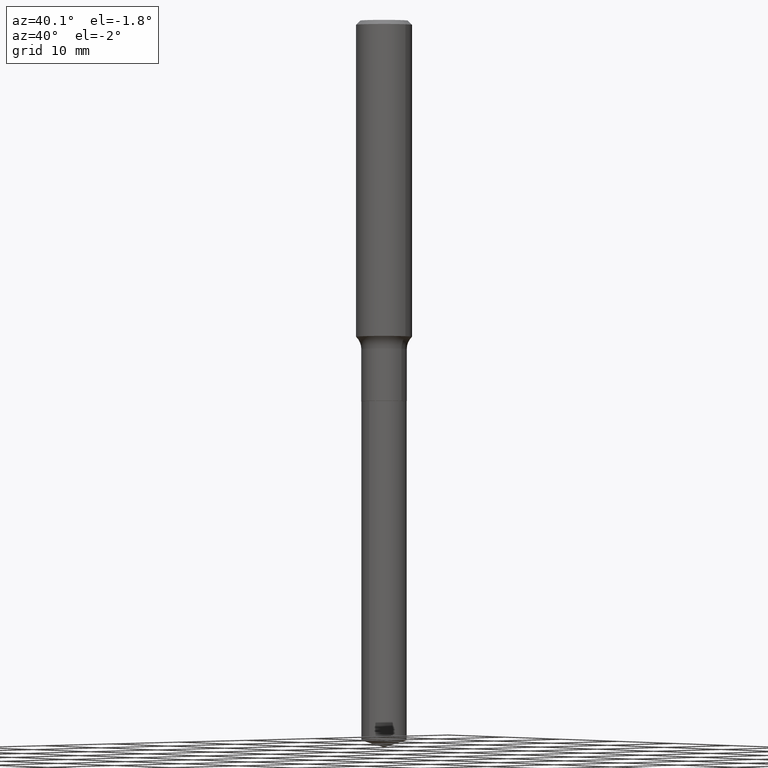
[diagram: clean part render]
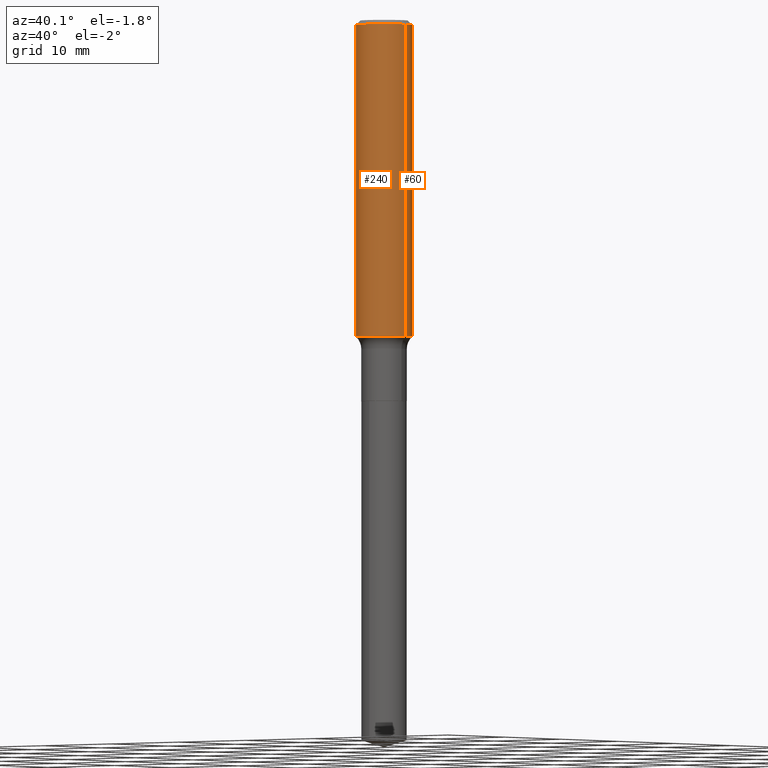
[diagram: same view with one multi-face feature highlighted, each face labeled with its STEP entity id]
A machine part, auxiliary view. The highlighted faces form ONE feature: a constant-radius fillet chain: 2 tangent blend faces with common blend radius 3.175 mm. The faces share edges in the B-rep.
Their STEP definitions:
[1] entity #60 (Cylinder):
#14 = AXIS2_PLACEMENT_3D ( 'NONE', #73, #138, #259 ) ;
#16 = EDGE_CURVE ( 'NONE', #313, #393, #262, .T. ) ;
#30 = AXIS2_PLACEMENT_3D ( 'NONE', #335, #77, #81 ) ;
#44 = EDGE_CURVE ( 'NONE', #433, #393, #448, .T. ) ;
#60 = ADVANCED_FACE ( 'NONE', ( #488 ), #373, .T. ) ;
#70 = DIRECTION ( 'NONE',  ( -2.445468806185136877E-29, 3.491481338843145188E-15, 1.000000000000000000 ) ) ;
#73 = CARTESIAN_POINT ( 'NONE',  ( 3.457276370714577820E-29, -4.936074384201103756E-15, -1.413747892416518992 ) ) ;
#77 = DIRECTION ( 'NONE',  ( -2.445468806185136597E-29, 3.491481338843145583E-15, 1.000000000000000000 ) ) ;
#78 = VECTOR ( 'NONE', #70, 39.37007874015748143 ) ;
#81 = DIRECTION ( 'NONE',  ( 1.000000000000000000, -6.982962677686266711E-15, 4.876176775795935793E-29 ) ) ;
#129 = CARTESIAN_POINT ( 'NONE',  ( -0.1250000000000000000, -1.612591409952080429E-15, -0.01875000000000013115 ) ) ;
#138 = DIRECTION ( 'NONE',  ( -2.445468806185136597E-29, 3.491481338843145583E-15, 1.000000000000000000 ) ) ;
#142 = EDGE_LOOP ( 'NONE', ( #188, #284, #207, #246 ) ) ;
#145 = VECTOR ( 'NONE', #167, 39.37007874015748143 ) ;
#163 = CARTESIAN_POINT ( 'NONE',  ( 0.1250000000000000833, -8.728703347107839305E-16, 6.095220969744923945E-30 ) ) ;
#167 = DIRECTION ( 'NONE',  ( -2.445468806185136877E-29, 3.491481338843145188E-15, 1.000000000000000000 ) ) ;
#175 = AXIS2_PLACEMENT_3D ( 'NONE', #296, #300, #265 ) ;
#188 = ORIENTED_EDGE ( 'NONE', *, *, #434, .T. ) ;
#206 = CARTESIAN_POINT ( 'NONE',  ( -0.1250000000000001943, -4.047895964500976946E-15, -1.413747892416518992 ) ) ;
#207 = ORIENTED_EDGE ( 'NONE', *, *, #44, .F. ) ;
#228 = CIRCLE ( 'NONE', #14, 0.1250000000000001665 ) ;
#246 = ORIENTED_EDGE ( 'NONE', *, *, #419, .F. ) ;
#259 = DIRECTION ( 'NONE',  ( 1.000000000000000000, -6.982962677686269077E-15, 0.000000000000000000 ) ) ;
#262 = LINE ( 'NONE', #298, #78 ) ;
#265 = DIRECTION ( 'NONE',  ( 1.000000000000000000, -6.982962677686266711E-15, 0.000000000000000000 ) ) ;
#268 = CARTESIAN_POINT ( 'NONE',  ( 0.1250000000000000000, -9.383356098140928781E-16, -0.01875000000000013115 ) ) ;
#284 = ORIENTED_EDGE ( 'NONE', *, *, #16, .T. ) ;
#296 = CARTESIAN_POINT ( 'NONE',  ( 4.585254011597162998E-31, -6.546527510330944066E-17, -0.01875000000000013115 ) ) ;
#298 = CARTESIAN_POINT ( 'NONE',  ( -0.1250000000000000833, 8.881784197001258240E-16, -6.148668862818636431E-30 ) ) ;
#300 = DIRECTION ( 'NONE',  ( -2.445468806185136597E-29, 3.491481338843145583E-15, 1.000000000000000000 ) ) ;
#313 = VERTEX_POINT ( 'NONE', #206 ) ;
#318 = CARTESIAN_POINT ( 'NONE',  ( 0.1250000000000001943, -5.808944718911887884E-15, -1.413747892416518992 ) ) ;
#331 = VERTEX_POINT ( 'NONE', #318 ) ;
#335 = CARTESIAN_POINT ( 'NONE',  ( 0.000000000000000000, 0.000000000000000000, 0.000000000000000000 ) ) ;
#358 = LINE ( 'NONE', #163, #145 ) ;
#373 = CYLINDRICAL_SURFACE ( 'NONE', #30, 0.1250000000000000833 ) ;
#393 = VERTEX_POINT ( 'NONE', #129 ) ;
#419 = EDGE_CURVE ( 'NONE', #331, #433, #358, .T. ) ;
#433 = VERTEX_POINT ( 'NONE', #268 ) ;
#434 = EDGE_CURVE ( 'NONE', #331, #313, #228, .T. ) ;
#448 = CIRCLE ( 'NONE', #175, 0.1250000000000000000 ) ;
#488 = FACE_OUTER_BOUND ( 'NONE', #142, .T. ) ;
[2] entity #240 (Cylinder):
#16 = EDGE_CURVE ( 'NONE', #313, #393, #262, .T. ) ;
#28 = ORIENTED_EDGE ( 'NONE', *, *, #36, .F. ) ;
#36 = EDGE_CURVE ( 'NONE', #393, #433, #279, .T. ) ;
#53 = AXIS2_PLACEMENT_3D ( 'NONE', #110, #103, #150 ) ;
#70 = DIRECTION ( 'NONE',  ( -2.445468806185136877E-29, 3.491481338843145188E-15, 1.000000000000000000 ) ) ;
#78 = VECTOR ( 'NONE', #70, 39.37007874015748143 ) ;
#86 = CARTESIAN_POINT ( 'NONE',  ( 0.000000000000000000, 0.000000000000000000, 0.000000000000000000 ) ) ;
#98 = ORIENTED_EDGE ( 'NONE', *, *, #419, .T. ) ;
#103 = DIRECTION ( 'NONE',  ( -2.445468806185136597E-29, 3.491481338843145583E-15, 1.000000000000000000 ) ) ;
#110 = CARTESIAN_POINT ( 'NONE',  ( 4.585254011597162998E-31, -6.546527510330944066E-17, -0.01875000000000013115 ) ) ;
#116 = CARTESIAN_POINT ( 'NONE',  ( 3.457276370714577820E-29, -4.936074384201103756E-15, -1.413747892416518992 ) ) ;
#120 = CYLINDRICAL_SURFACE ( 'NONE', #423, 0.1250000000000000833 ) ;
#129 = CARTESIAN_POINT ( 'NONE',  ( -0.1250000000000000000, -1.612591409952080429E-15, -0.01875000000000013115 ) ) ;
#145 = VECTOR ( 'NONE', #167, 39.37007874015748143 ) ;
#148 = EDGE_LOOP ( 'NONE', ( #479, #217, #98, #28 ) ) ;
#150 = DIRECTION ( 'NONE',  ( 1.000000000000000000, -6.982962677686266711E-15, 0.000000000000000000 ) ) ;
#163 = CARTESIAN_POINT ( 'NONE',  ( 0.1250000000000000833, -8.728703347107839305E-16, 6.095220969744923945E-30 ) ) ;
#167 = DIRECTION ( 'NONE',  ( -2.445468806185136877E-29, 3.491481338843145188E-15, 1.000000000000000000 ) ) ;
#193 = DIRECTION ( 'NONE',  ( 1.000000000000000000, -6.982962677686269077E-15, 0.000000000000000000 ) ) ;
#201 = EDGE_CURVE ( 'NONE', #313, #331, #211, .T. ) ;
#206 = CARTESIAN_POINT ( 'NONE',  ( -0.1250000000000001943, -4.047895964500976946E-15, -1.413747892416518992 ) ) ;
#211 = CIRCLE ( 'NONE', #360, 0.1250000000000001665 ) ;
#217 = ORIENTED_EDGE ( 'NONE', *, *, #201, .T. ) ;
#240 = ADVANCED_FACE ( 'NONE', ( #304 ), #120, .T. ) ;
#241 = DIRECTION ( 'NONE',  ( -2.445468806185136597E-29, 3.491481338843145583E-15, 1.000000000000000000 ) ) ;
#262 = LINE ( 'NONE', #298, #78 ) ;
#268 = CARTESIAN_POINT ( 'NONE',  ( 0.1250000000000000000, -9.383356098140928781E-16, -0.01875000000000013115 ) ) ;
#279 = CIRCLE ( 'NONE', #53, 0.1250000000000000000 ) ;
#298 = CARTESIAN_POINT ( 'NONE',  ( -0.1250000000000000833, 8.881784197001258240E-16, -6.148668862818636431E-30 ) ) ;
#304 = FACE_OUTER_BOUND ( 'NONE', #148, .T. ) ;
#313 = VERTEX_POINT ( 'NONE', #206 ) ;
#318 = CARTESIAN_POINT ( 'NONE',  ( 0.1250000000000001943, -5.808944718911887884E-15, -1.413747892416518992 ) ) ;
#331 = VERTEX_POINT ( 'NONE', #318 ) ;
#358 = LINE ( 'NONE', #163, #145 ) ;
#360 = AXIS2_PLACEMENT_3D ( 'NONE', #116, #241, #193 ) ;
#387 = DIRECTION ( 'NONE',  ( 1.000000000000000000, -6.982962677686266711E-15, 4.876176775795935793E-29 ) ) ;
#388 = DIRECTION ( 'NONE',  ( -2.445468806185136597E-29, 3.491481338843145583E-15, 1.000000000000000000 ) ) ;
#393 = VERTEX_POINT ( 'NONE', #129 ) ;
#419 = EDGE_CURVE ( 'NONE', #331, #433, #358, .T. ) ;
#423 = AXIS2_PLACEMENT_3D ( 'NONE', #86, #388, #387 ) ;
#433 = VERTEX_POINT ( 'NONE', #268 ) ;
#479 = ORIENTED_EDGE ( 'NONE', *, *, #16, .F. ) ;